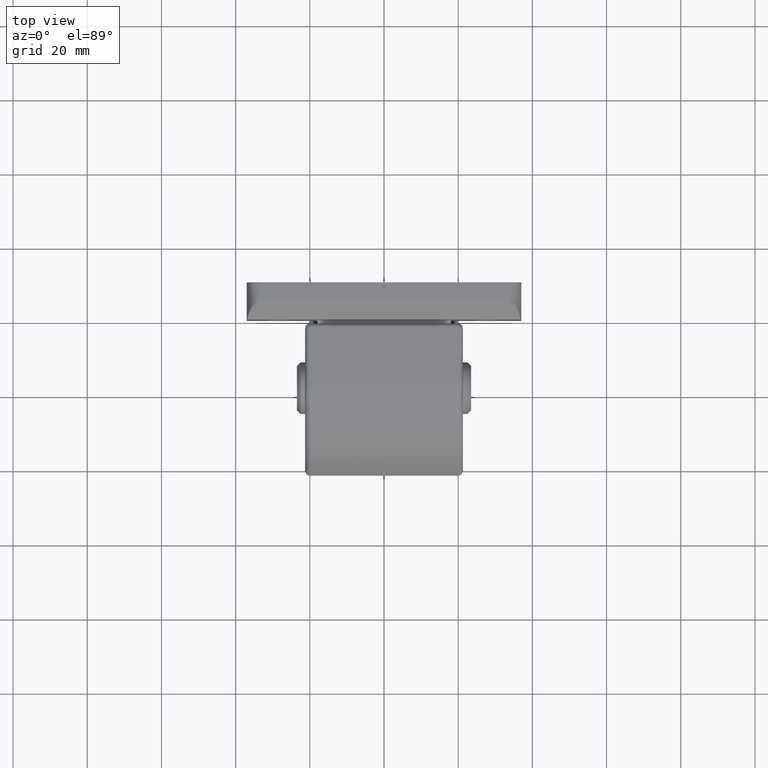
[diagram: clean part render]
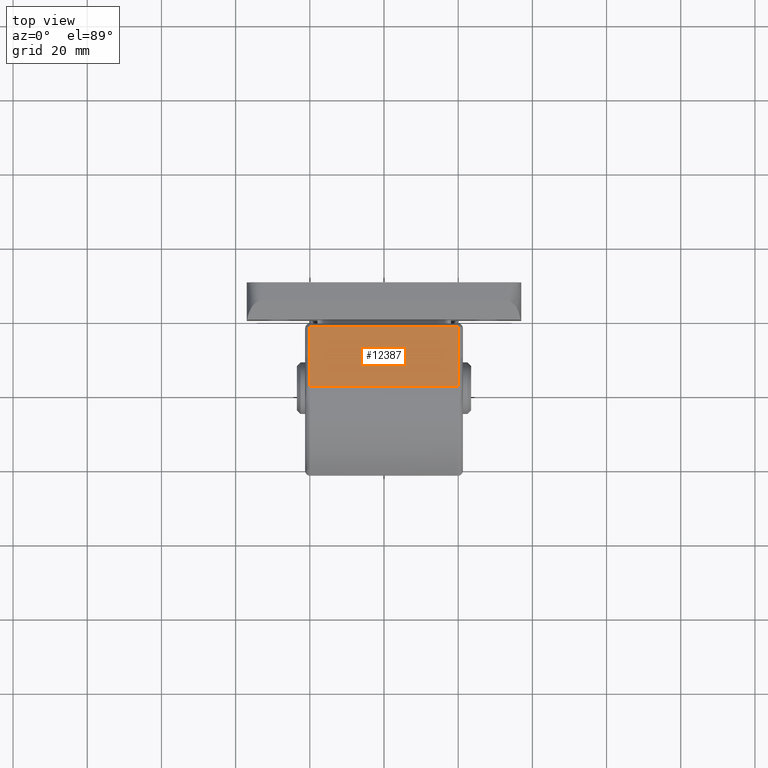
[diagram: same view with one face highlighted and labeled with its STEP entity id]
A machine part, top view. The second image highlights one B-rep face of the part: STEP entity #12387.
In plain terms, the highlighted face is a freeform B-spline surface patch.
Its self-contained STEP definition (entity closure, byte-faithful):
#11224=CARTESIAN_POINT('',(-20.0,16.000022894157251,27.0));
#11225=VERTEX_POINT('',#11224);
#11333=CARTESIAN_POINT('',(-20.0,0.000021532800467,27.0));
#11334=VERTEX_POINT('',#11333);
#11348=CARTESIAN_POINT('',(-20.0,16.000022894157251,27.0));
#11349=CARTESIAN_POINT('',(-20.0,0.000021532800467,27.0));
#11350=QUASI_UNIFORM_CURVE('',1,(#11348,#11349),.UNSPECIFIED.,.F.,.U.);
#11351=EDGE_CURVE('',#11225,#11334,#11350,.T.);
#11497=CARTESIAN_POINT('',(20.0,16.000022894157251,27.0));
#11498=VERTEX_POINT('',#11497);
#11561=CARTESIAN_POINT('',(20.0,0.000021532800467,27.0));
#11562=VERTEX_POINT('',#11561);
#11584=CARTESIAN_POINT('',(20.0,0.000021532800467,27.0));
#11585=CARTESIAN_POINT('',(20.0,16.000022894157251,27.0));
#11586=QUASI_UNIFORM_CURVE('',1,(#11584,#11585),.UNSPECIFIED.,.F.,.U.);
#11587=EDGE_CURVE('',#11562,#11498,#11586,.T.);
#12168=CARTESIAN_POINT('',(-20.0,16.000022894157251,27.0));
#12169=CARTESIAN_POINT('',(20.0,16.000022894157251,27.0));
#12170=QUASI_UNIFORM_CURVE('',1,(#12168,#12169),.UNSPECIFIED.,.F.,.U.);
#12171=EDGE_CURVE('',#11225,#11498,#12170,.T.);
#12365=CARTESIAN_POINT('',(-20.0,0.000021532800467,27.0));
#12366=CARTESIAN_POINT('',(20.0,0.000021532800467,27.0));
#12367=QUASI_UNIFORM_CURVE('',1,(#12365,#12366),.UNSPECIFIED.,.F.,.U.);
#12368=EDGE_CURVE('',#11334,#11562,#12367,.T.);
#12376=CARTESIAN_POINT('',(-21.997999922472239,-0.799178504188197,27.0));
#12377=CARTESIAN_POINT('',(21.998000995355849,-0.799178504188197,27.0));
#12378=CARTESIAN_POINT('',(-21.997999922472239,16.799223360299401,27.0));
#12379=CARTESIAN_POINT('',(21.998000995355849,16.799223360299401,27.0));
#12380=B_SPLINE_SURFACE_WITH_KNOTS('',1,1,((#12376,#12378),(#12377,#12379)),.UNSPECIFIED.,.F.,.F.,.U.,(2,2),(2,2),(0.0,43.996000917828077),(0.0,17.598401864487599),.UNSPECIFIED.);
#12381=ORIENTED_EDGE('',*,*,#12171,.F.);
#12382=ORIENTED_EDGE('',*,*,#11351,.T.);
#12383=ORIENTED_EDGE('',*,*,#12368,.T.);
#12384=ORIENTED_EDGE('',*,*,#11587,.T.);
#12385=EDGE_LOOP('',(#12381,#12382,#12383,#12384));
#12386=FACE_OUTER_BOUND('',#12385,.T.);
#12387=ADVANCED_FACE('',(#12386),#12380,.T.);